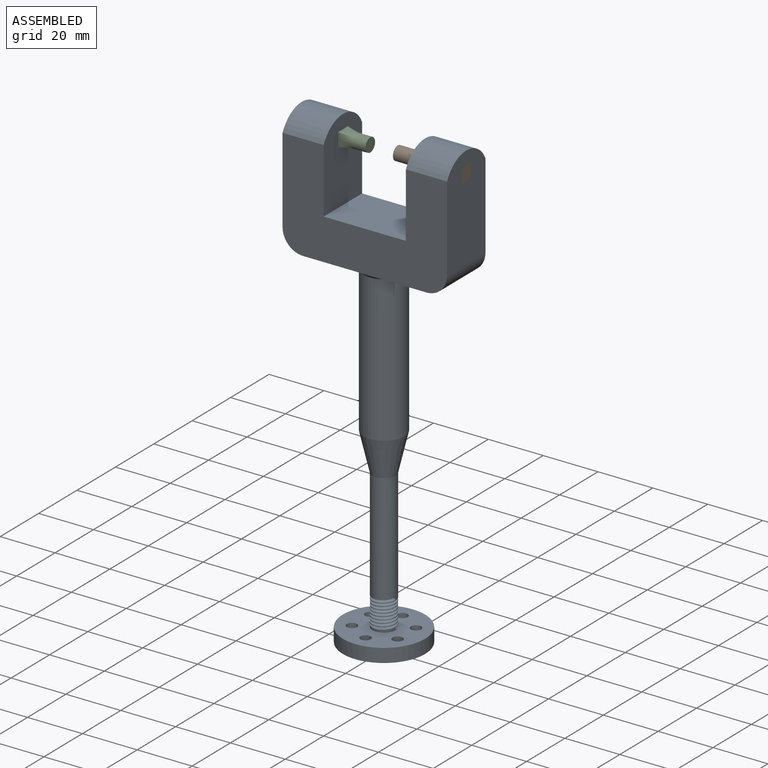
[diagram: assembled view]
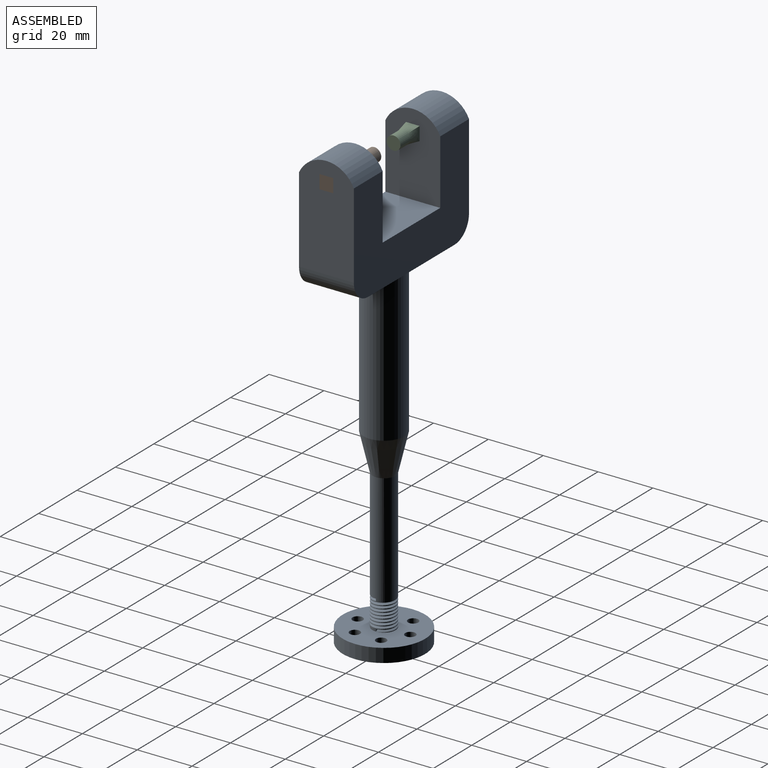
[diagram: assembled view, second angle]
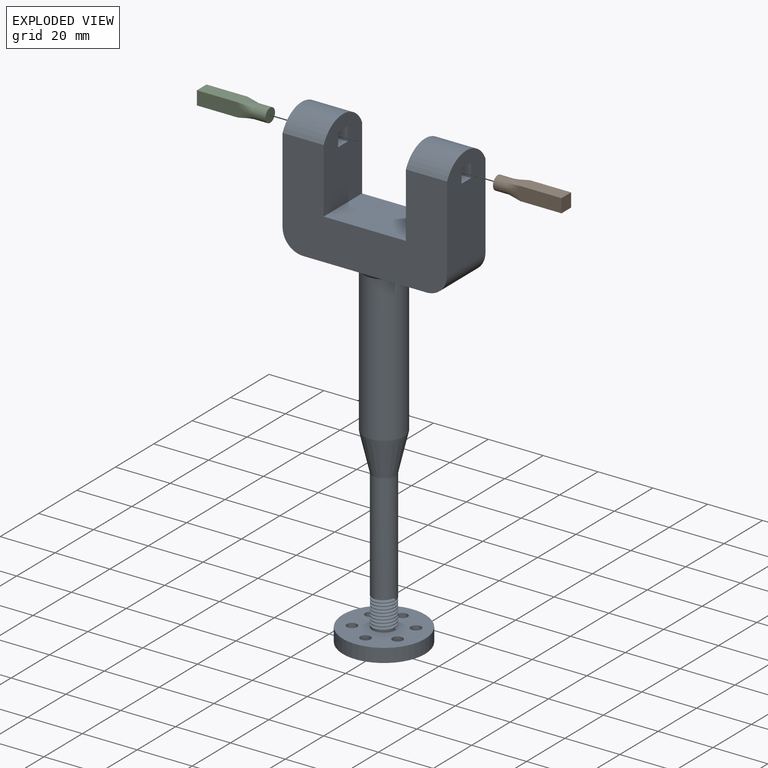
[diagram: exploded view]
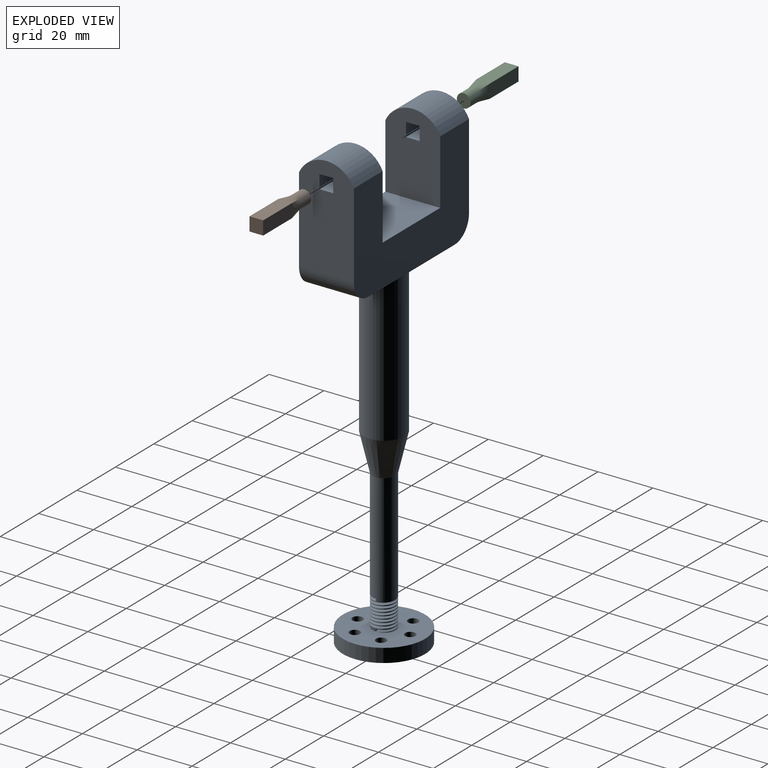
[diagram: exploded view, second angle]
ASSEMBLY  parts=3 mates=2
PART A: 46 faces, bbox 60x30x170 mm
  f0: plane 30x20mm, normal (-1,0,0), area 538.9mm2, adj f3,f7,f8,f11,f12,f13,f14,f15
  f1: plane 37.5x20mm, normal (-1,0,0), area 688.9mm2, adj f7,f8,f9,f10,f16,f17,f18,f19
  f2: plane 30x20mm, normal (1,0,0), area 538.9mm2, adj f3,f7,f8,f10,f16,f17,f18,f19
  f3: plane 30x20mm, normal (0,0,1), area 600mm2, adj f0,f2,f7,f8
  f4: plane 45x20mm, normal (0,0,-1), area 616.5mm2, adj f5,f7,f8,f9,f32
  f5: cylinder r=7.5mm len=20mm, axis (0,1,0), area 235.6mm2, adj f4,f6,f7,f8
  f6: plane 37.5x20mm, normal (1,0,0), area 688.9mm2, adj f5,f7,f8,f11,f12,f13,f14,f15
  f7: plane 60x38.58mm, normal (0,-1,0), area 1583.3mm2, adj f0,f1,f2,f3,f4,f5,f6,f9
  f8: plane 60x38.58mm, normal (0,1,0), area 1583.3mm2, adj f0,f1,f2,f3,f4,f5,f6,f9
  f9: cylinder r=7.5mm len=20mm, axis (0,1,0), area 235.6mm2, adj f1,f4,f7,f8
  f10: cylinder r=11mm len=20mm, axis (1,0,0), area 376.6mm2, adj f1,f2,f7,f8
  f11: cylinder r=11mm len=20mm, axis (1,0,0), area 376.6mm2, adj f0,f6,f7,f8
  f12: plane 15x5mm, normal (0,1,0), area 75mm2, adj f0,f6,f13,f15
  f13: plane 15x5mm, normal (0,0,-1), area 75mm2, adj f0,f6,f12,f14
  f14: plane 15x5mm, normal (0,-1,0), area 75mm2, adj f0,f6,f13,f15
  f15: plane 15x5mm, normal (0,0,1), area 75mm2, adj f0,f6,f12,f14
  f16: plane 15x5mm, normal (0,0,1), area 75mm2, adj f1,f2,f17,f19
  f17: plane 15x5mm, normal (0,-1,0), area 75mm2, adj f1,f2,f16,f18
  f18: plane 15x5mm, normal (0,0,-1), area 75mm2, adj f1,f2,f17,f19
  f19: plane 15x5mm, normal (0,1,0), area 75mm2, adj f1,f2,f16,f18
  f20: cone r=7.5mm half-angle=13.3deg, axis (0,0,1), area 526.1mm2, adj f21,f31
  f21: cylinder r=7.5mm len=53.22mm, axis (0,0,1), area 2507.9mm2, adj f20,f32
  f22: cylinder r=4.22mm len=8.44mm, axis (0,0,1), area 7.4mm2, adj f23,f31,f33,f34
  f23: cylinder r=4.22mm len=8.44mm, axis (0,0,1), area 7.4mm2, adj f22,f24,f33,f34
  f24: cylinder r=4.22mm len=8.44mm, axis (0,0,1), area 7.4mm2, adj f23,f25,f33,f34
  f25: cylinder r=4.22mm len=8.44mm, axis (0,0,1), area 7.4mm2, adj f24,f26,f33,f34
  f26: cylinder r=4.22mm len=8.44mm, axis (0,0,1), area 7.4mm2, adj f25,f27,f33,f34
  f27: cylinder r=4.22mm len=8.44mm, axis (0,0,1), area 7.4mm2, adj f26,f28,f33,f34
  f28: cylinder r=4.22mm len=8.44mm, axis (0,0,1), area 7.4mm2, adj f27,f29,f33,f34
  f29: cylinder r=4.22mm len=8.44mm, axis (0,0,1), area 7.4mm2, adj f28,f30,f33,f34
  f30: cylinder r=4.22mm len=8.44mm, axis (0,0,1), area 15mm2, adj f29,f34,f36,f45
  f31: cylinder r=4.22mm len=41.14mm, axis (0,0,1), area 1075.6mm2, adj f20,f22,f33,f35
  f32: cone r=7.5mm half-angle=45deg, axis (0,0,1), area 151.1mm2, adj f4,f21
  f33: bspline ~10.39x9.74mm, area 237.6mm2, adj f22,f23,f24,f25,f26,f27,f28,f29
  f34: bspline ~10.44x9.74mm, area 242.1mm2, adj f22,f23,f24,f25,f26,f27,f28,f29
  f35: plane 1.07x0.83mm, normal (0,-1,0), area 0.4mm2, adj f31,f33,f34
  f36: plane 1.07x0.83mm, normal (0,1,0), area 0.4mm2, adj f30,f33,f34
  f37: cylinder r=1.88mm len=5mm, axis (0,0,1), area 58.9mm2, adj f44,f45
  f38: cylinder r=1.88mm len=5mm, axis (0,0,1), area 58.9mm2, adj f44,f45
  f39: cylinder r=1.88mm len=5mm, axis (0,0,1), area 58.9mm2, adj f44,f45
  f40: cylinder r=1.88mm len=5mm, axis (0,0,1), area 58.9mm2, adj f44,f45
  f41: cylinder r=1.88mm len=5mm, axis (0,0,1), area 58.9mm2, adj f44,f45
  f42: cylinder r=1.88mm len=5mm, axis (0,0,1), area 58.9mm2, adj f44,f45
  f43: cylinder r=15mm len=30mm, axis (0,0,1), area 471.2mm2, adj f44,f45
  f44: plane 30x30mm, normal (0,0,-1), area 640.6mm2, adj f37,f38,f39,f40,f41,f42,f43
  f45: plane 30x30mm, normal (0,0,1), area 584.7mm2, adj f30,f37,f38,f39,f40,f41,f42,f43
PART B: 14 faces, bbox 25x5x5 mm
  f0: plane 15x5mm, normal (0,0,-1), area 75mm2, adj f1,f3,f4,f8
  f1: plane 15x5mm, normal (0,1,0), area 75mm2, adj f0,f2,f4,f5
  f2: plane 15x5mm, normal (0,0,1), area 75mm2, adj f1,f3,f4,f6
  f3: plane 15x5mm, normal (0,-1,0), area 75mm2, adj f0,f2,f4,f7
  f4: plane 5x5mm, normal (-1,0,0), area 25mm2, adj f0,f1,f2,f3
  f5: bspline ~5x5mm, area 22mm2, adj f1,f6,f8,f9
  f6: bspline ~5x5mm, area 22mm2, adj f2,f5,f7,f10
  f7: bspline ~5x5mm, area 22mm2, adj f3,f6,f8,f11
  f8: bspline ~5x5mm, area 22mm2, adj f0,f5,f7,f12
  f9: extruded ~5x3.54mm, area 19.6mm2, adj f5,f10,f12,f13
  f10: extruded ~5x3.54mm, area 19.6mm2, adj f6,f9,f11,f13
  f11: extruded ~5x3.54mm, area 19.6mm2, adj f7,f10,f12,f13
  f12: extruded ~5x3.54mm, area 19.6mm2, adj f8,f9,f11,f13
  f13: plane 5x5mm, normal (1,0,0), area 19.6mm2, adj f9,f10,f11,f12
PART C: same geometry as B
PLACE A at identity
PLACE B rot(axis=(0,0,1),180deg) t=(60,0,0)mm
PLACE C t=(-60,0,0)mm
MATE fastened B.f4 <-> A.f6  axis (1,0,0) through (30,2.5,37.5)mm
MATE fastened C.f4 <-> A.f1  axis (-1,0,0) through (-30,-2.5,37.5)mm
